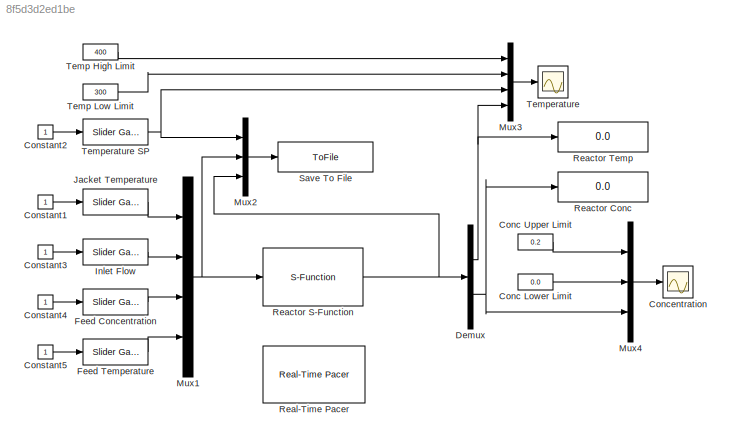
MODEL slx_8f5d3d2ed1be
KIND model
CONFIG StopFcn = plot_reactor
BLOCK [Constant] Conc Lower Limit
  Value = 0.0
BLOCK [Constant] Conc Upper Limit
  Value = 0.2
BLOCK [Scope] Concentration
  DataFormat = StructureWithTime
  Floating = off
  LegendLocations = 0.72403     0.74546     0.22675     0.14804
  NumInputPorts = 1
  Ports = [1]
  SampleTime = 0
  ShowLegends = on
  YMax = 1
  YMin = 0
BLOCK [Constant] Constant1
BLOCK [Constant] Constant2
BLOCK [Constant] Constant3
BLOCK [Constant] Constant4
BLOCK [Constant] Constant5
BLOCK [Demux] Demux
  DisplayOption = bar
  Outputs = 2
  Ports = [1, 2]
BLOCK [Reference] Feed Concentration  REF=simulink/Math
Operations/Slider
Gain
  Ports = [1, 1]
  SourceBlock = simulink/Math\nOperations/Slider\nGain
  SourceType = Slider Gain
  gain = 1
  high = 1
  low = 0
BLOCK [Reference] Feed Temperature  REF=simulink/Math
Operations/Slider
Gain
  Ports = [1, 1]
  SourceBlock = simulink/Math\nOperations/Slider\nGain
  SourceType = Slider Gain
  gain = 350
  high = 400
  low = 300
BLOCK [Reference] Inlet Flow  REF=simulink/Math
Operations/Slider
Gain
  Ports = [1, 1]
  SourceBlock = simulink/Math\nOperations/Slider\nGain
  SourceType = Slider Gain
  gain = 100
  high = 200
  low = 0
BLOCK [Reference] Jacket Temperature  REF=simulink/Math
Operations/Slider
Gain
  Ports = [1, 1]
  SourceBlock = simulink/Math\nOperations/Slider\nGain
  SourceType = Slider Gain
  gain = 280
  high = 350
  low = 250
BLOCK [Mux] Mux1
  DisplayOption = bar
  Ports = [4, 1]
BLOCK [Mux] Mux2
  DisplayOption = bar
  Inputs = 3
  Ports = [3, 1]
BLOCK [Mux] Mux3
  DisplayOption = bar
  Ports = [4, 1]
BLOCK [Mux] Mux4
  DisplayOption = bar
  Inputs = 3
  Ports = [3, 1]
BLOCK [Display] Reactor Conc
  Decimation = 1
  Lockdown = off
  Ports = [1]
BLOCK [S-Function] Reactor S-Function
  EnableBusSupport = off
  FunctionName = reactor
  Ports = [1, 1]
BLOCK [Display] Reactor Temp
  Decimation = 1
  Lockdown = off
  Ports = [1]
BLOCK [Reference] Real-Time Pacer  REF=realtime_pacer_lib/Real-Time Pacer
  Ports = []
  SourceBlock = realtime_pacer_lib/Real-Time Pacer
  SourceType = RealTime_Pacer
  simTimePerRealTime = 1/5
BLOCK [ToFile] Save To File
  Filename = data.mat
  MatrixName = cstr
  Ports = [1]
  SampleTime = 0.05
BLOCK [Constant] Temp High Limit
  Value = 400
BLOCK [Constant] Temp Low Limit
  Value = 300
BLOCK [Scope] Temperature
  DataFormat = StructureWithTime
  Floating = off
  LegendLocations = 0.72879     0.67445     0.22167     0.20976
  MaxDataPoints = 30000
  NumInputPorts = 1
  Ports = [1]
  SampleTime = 0
  SaveName = ScopeData1
  ShowLegends = on
  TimeRange = 10
  YMax = 400
  YMin = 285
  ZoomMode = yonly
BLOCK [Reference] Temperature SP  REF=simulink/Math
Operations/Slider
Gain
  Ports = [1, 1]
  SourceBlock = simulink/Math\nOperations/Slider\nGain
  SourceType = Slider Gain
  gain = 310
  high = 400
  low = 300
LINE Conc Lower Limit:1 -> Mux4:2
LINE Conc Upper Limit:1 -> Mux4:1
LINE Constant1:1 -> Jacket Temperature:1
LINE Constant2:1 -> Temperature SP:1
LINE Constant3:1 -> Inlet Flow:1
LINE Constant4:1 -> Feed Concentration:1
LINE Constant5:1 -> Feed Temperature:1
NET Demux:1 -> Mux3:4, Reactor Temp:1
NET Demux:2 -> Mux4:3, Reactor Conc:1
LINE Feed Concentration:1 -> Mux1:3
LINE Feed Temperature:1 -> Mux1:4
LINE Inlet Flow:1 -> Mux1:2
LINE Jacket Temperature:1 -> Mux1:1
NET Mux1:1 -> Mux2:2, Reactor S-Function:1
LINE Mux2:1 -> Save To File:1
LINE Mux3:1 -> Temperature:1
LINE Mux4:1 -> Concentration:1
NET Reactor S-Function:1 -> Demux:1, Mux2:3
LINE Temp High Limit:1 -> Mux3:1
LINE Temp Low Limit:1 -> Mux3:2
NET Temperature SP:1 -> Mux2:1, Mux3:3
note: NET lines group one-source signal fan-out (src -> all destinations, sorted); 1:1 wires keep LINE
